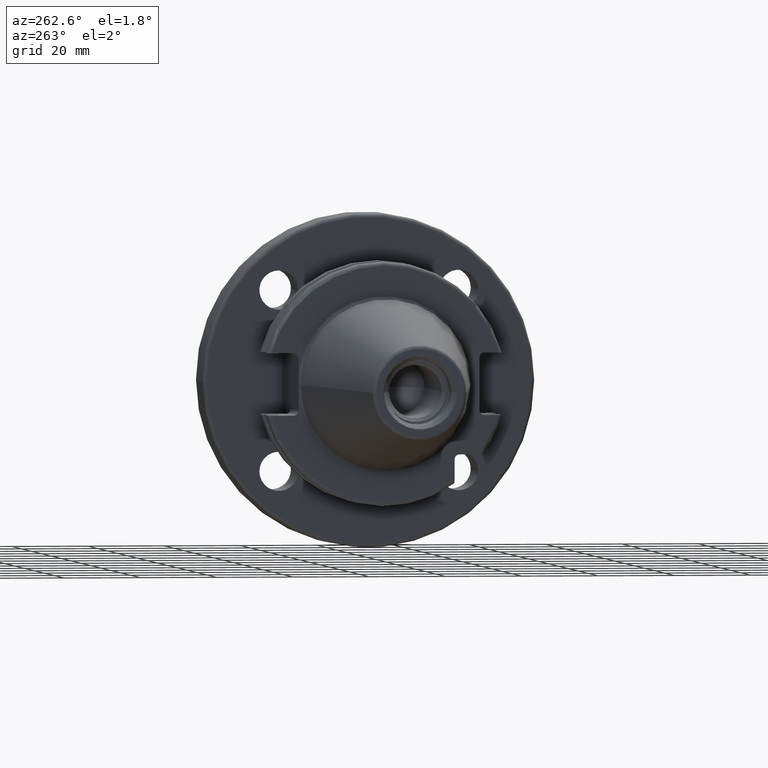
[diagram: clean part render]
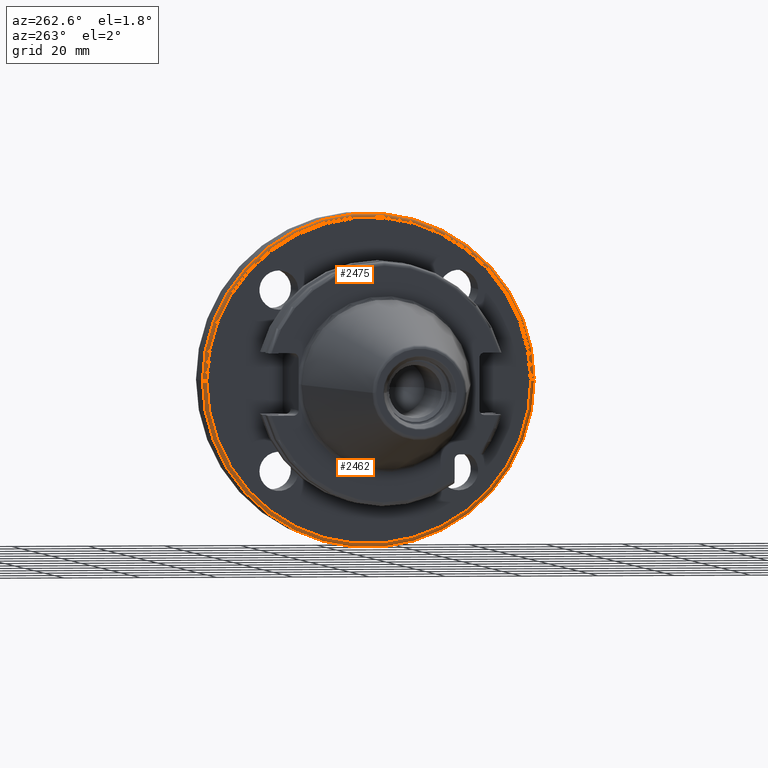
[diagram: same view with one multi-face feature highlighted, each face labeled with its STEP entity id]
A machine part, auxiliary view. The highlighted faces form ONE feature: a constant-radius fillet chain: 2 tangent blend faces with common blend radius 1 mm. The faces share edges in the B-rep.
Their STEP definitions:
[1] entity #2475 (Torus):
#362=CARTESIAN_POINT('',(3.505E1,0.E0,0.E0));
#363=DIRECTION('',(-1.E0,0.E0,0.E0));
#364=DIRECTION('',(0.E0,-1.E0,0.E0));
#365=AXIS2_PLACEMENT_3D('',#362,#363,#364);
#407=CARTESIAN_POINT('',(3.605E1,4.25E1,2.406408405875E-14));
#408=DIRECTION('',(0.E0,0.E0,-1.E0));
#409=DIRECTION('',(-1.E0,0.E0,0.E0));
#410=AXIS2_PLACEMENT_3D('',#407,#408,#409);
#412=CARTESIAN_POINT('',(3.605E1,-4.25E1,-2.248201624866E-14));
#413=DIRECTION('',(0.E0,0.E0,1.E0));
#414=DIRECTION('',(-1.E0,0.E0,0.E0));
#415=AXIS2_PLACEMENT_3D('',#412,#413,#414);
#422=CARTESIAN_POINT('',(3.605E1,0.E0,0.E0));
#423=DIRECTION('',(-1.E0,0.E0,0.E0));
#424=DIRECTION('',(0.E0,-1.E0,0.E0));
#425=AXIS2_PLACEMENT_3D('',#422,#423,#424);
#1878=CARTESIAN_POINT('',(3.605E1,4.35E1,2.030964744945E-12));
#1879=VERTEX_POINT('',#1878);
#1930=CARTESIAN_POINT('',(3.505E1,4.25E1,0.E0));
#1931=CARTESIAN_POINT('',(3.505E1,-4.25E1,-1.040949779275E-14));
#1932=VERTEX_POINT('',#1930);
#1933=VERTEX_POINT('',#1931);
#1934=CARTESIAN_POINT('',(3.605E1,-4.35E1,-1.065442715258E-14));
#1935=VERTEX_POINT('',#1934);
#2463=CARTESIAN_POINT('',(3.605E1,0.E0,0.E0));
#2464=DIRECTION('',(1.E0,0.E0,0.E0));
#2465=DIRECTION('',(0.E0,-9.999873922088E-1,-5.021496137948E-3));
#2466=AXIS2_PLACEMENT_3D('',#2463,#2464,#2465);
#2467=TOROIDAL_SURFACE('',#2466,4.25E1,1.E0);
#2468=ORIENTED_EDGE('',*,*,#2415,.T.);
#2469=ORIENTED_EDGE('',*,*,#2458,.T.);
#2471=ORIENTED_EDGE('',*,*,#2470,.F.);
#2472=ORIENTED_EDGE('',*,*,#2454,.F.);
#2473=EDGE_LOOP('',(#2468,#2469,#2471,#2472));
#2474=FACE_OUTER_BOUND('',#2473,.F.);
#2475=ADVANCED_FACE('',(#2474),#2467,.T.);
#366=CIRCLE('',#365,4.25E1);
#411=CIRCLE('',#410,1.E0);
#416=CIRCLE('',#415,1.E0);
#426=CIRCLE('',#425,4.35E1);
#2415=EDGE_CURVE('',#1933,#1932,#366,.T.);
#2454=EDGE_CURVE('',#1933,#1935,#416,.T.);
#2458=EDGE_CURVE('',#1932,#1879,#411,.T.);
#2470=EDGE_CURVE('',#1935,#1879,#426,.T.);
[2] entity #2462 (Torus):
#357=CARTESIAN_POINT('',(3.505E1,0.E0,0.E0));
#358=DIRECTION('',(-1.E0,0.E0,0.E0));
#359=DIRECTION('',(0.E0,1.E0,0.E0));
#360=AXIS2_PLACEMENT_3D('',#357,#358,#359);
#407=CARTESIAN_POINT('',(3.605E1,4.25E1,2.406408405875E-14));
#408=DIRECTION('',(0.E0,0.E0,-1.E0));
#409=DIRECTION('',(-1.E0,0.E0,0.E0));
#410=AXIS2_PLACEMENT_3D('',#407,#408,#409);
#412=CARTESIAN_POINT('',(3.605E1,-4.25E1,-2.248201624866E-14));
#413=DIRECTION('',(0.E0,0.E0,1.E0));
#414=DIRECTION('',(-1.E0,0.E0,0.E0));
#415=AXIS2_PLACEMENT_3D('',#412,#413,#414);
#446=CARTESIAN_POINT('',(3.605E1,0.E0,0.E0));
#447=DIRECTION('',(-1.E0,0.E0,0.E0));
#448=DIRECTION('',(0.E0,1.E0,0.E0));
#449=AXIS2_PLACEMENT_3D('',#446,#447,#448);
#1878=CARTESIAN_POINT('',(3.605E1,4.35E1,2.030964744945E-12));
#1879=VERTEX_POINT('',#1878);
#1930=CARTESIAN_POINT('',(3.505E1,4.25E1,0.E0));
#1931=CARTESIAN_POINT('',(3.505E1,-4.25E1,-1.040949779275E-14));
#1932=VERTEX_POINT('',#1930);
#1933=VERTEX_POINT('',#1931);
#1934=CARTESIAN_POINT('',(3.605E1,-4.35E1,-1.065442715258E-14));
#1935=VERTEX_POINT('',#1934);
#2448=CARTESIAN_POINT('',(3.605E1,0.E0,0.E0));
#2449=DIRECTION('',(1.E0,0.E0,0.E0));
#2450=DIRECTION('',(0.E0,9.999873922088E-1,5.021496137948E-3));
#2451=AXIS2_PLACEMENT_3D('',#2448,#2449,#2450);
#2452=TOROIDAL_SURFACE('',#2451,4.25E1,1.E0);
#2453=ORIENTED_EDGE('',*,*,#2413,.T.);
#2455=ORIENTED_EDGE('',*,*,#2454,.T.);
#2457=ORIENTED_EDGE('',*,*,#2456,.F.);
#2459=ORIENTED_EDGE('',*,*,#2458,.F.);
#2460=EDGE_LOOP('',(#2453,#2455,#2457,#2459));
#2461=FACE_OUTER_BOUND('',#2460,.F.);
#2462=ADVANCED_FACE('',(#2461),#2452,.T.);
#361=CIRCLE('',#360,4.25E1);
#411=CIRCLE('',#410,1.E0);
#416=CIRCLE('',#415,1.E0);
#450=CIRCLE('',#449,4.35E1);
#2413=EDGE_CURVE('',#1932,#1933,#361,.T.);
#2454=EDGE_CURVE('',#1933,#1935,#416,.T.);
#2456=EDGE_CURVE('',#1879,#1935,#450,.T.);
#2458=EDGE_CURVE('',#1932,#1879,#411,.T.);